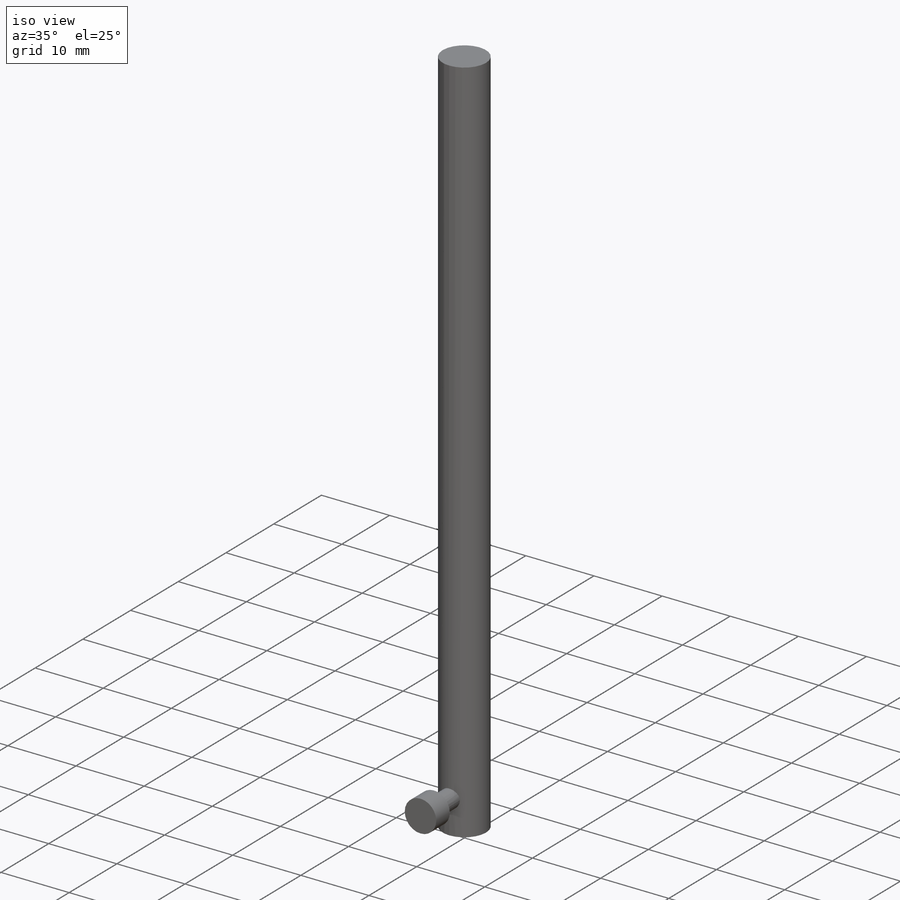
[diagram: iso view]
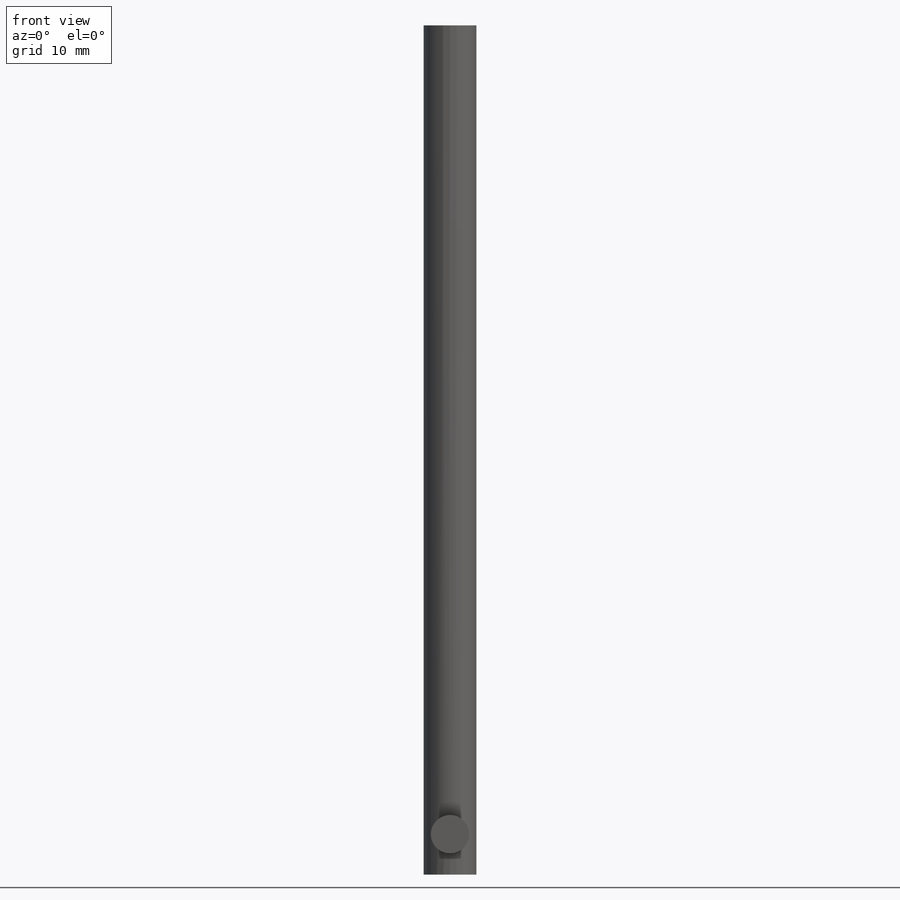
[diagram: front view]
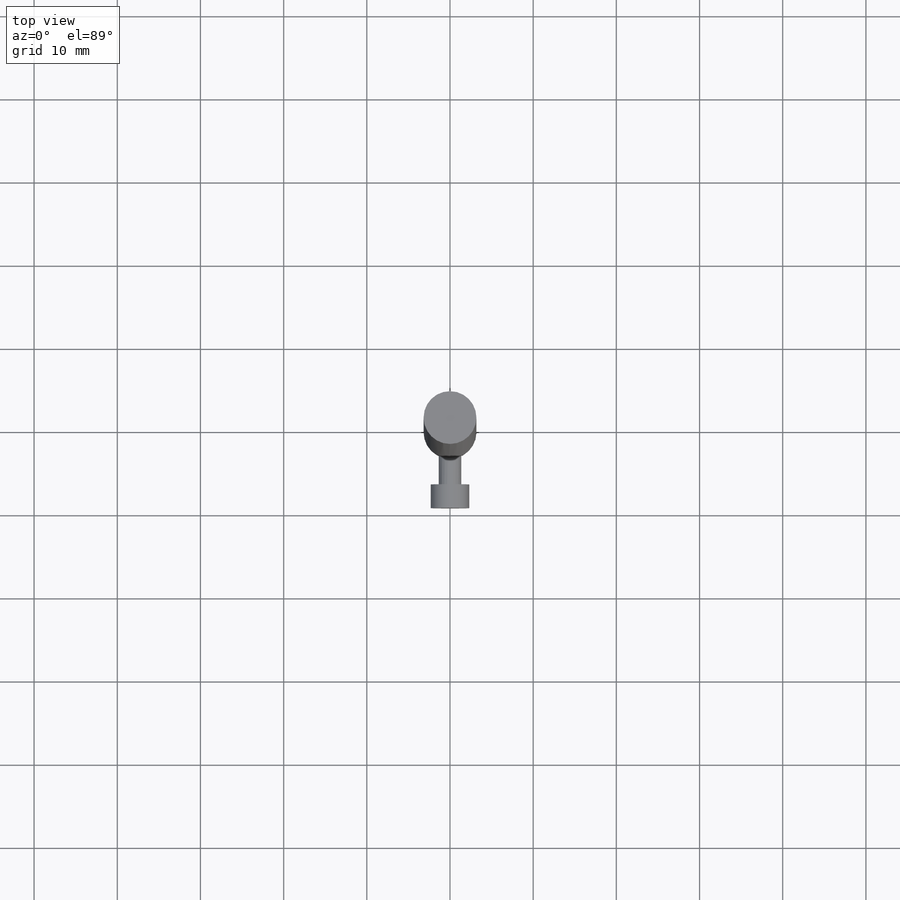
[diagram: top view]
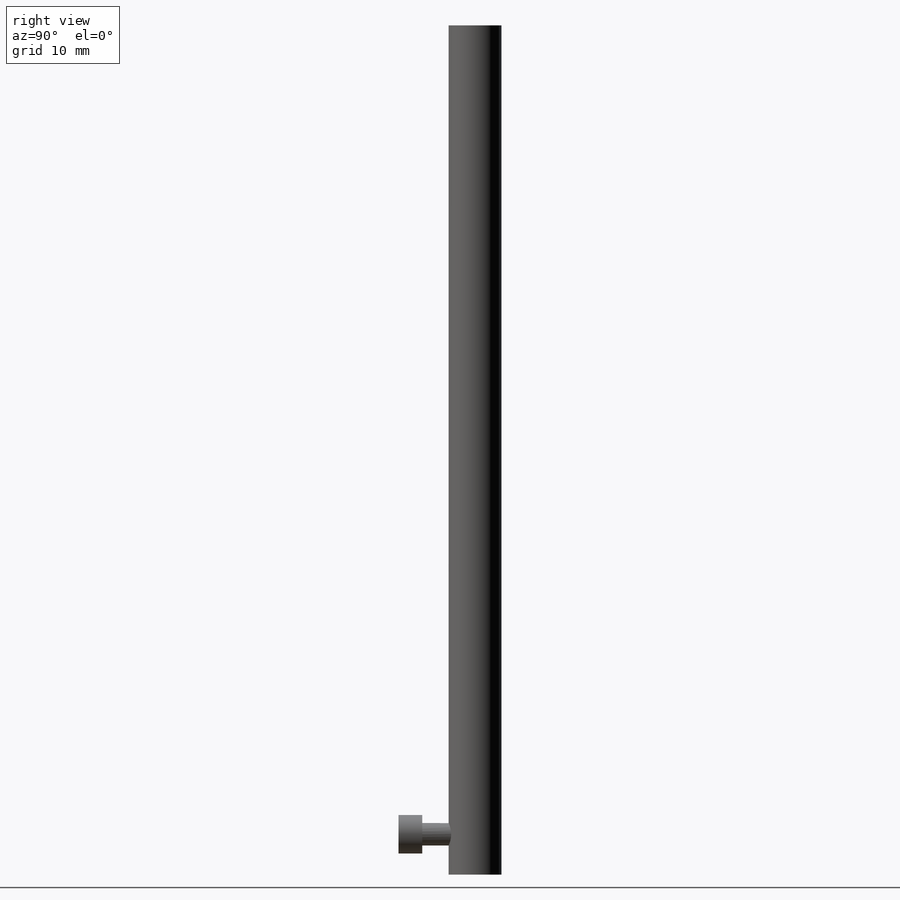
[diagram: right view]
SOLIDWORKS PART (.sldprt)
format: sldprt  version: not decoded by parser v0  size: 150,016 bytes
history: native  units: mm
features: sketch x4, extrude x3, material x1, cut_extrude x1 (+16 scaffold rows collapsed)
feature tree (25):
  scaffold x16  (default folders/planes/origin — collapsed)
  material  "Material <not specified>"
  sketch  "Sketch1"  dims[D1=6.35mm]
  extrude  "Extrude1"  Depth=102.108mm
  sketch  "Sketch2"  dims[D1=2.0mm]
  cut_extrude  "Extrude2"  Depth=6.35mm
  sketch  "Sketch4"  dims[D2=~2.70764mm D1=3.5mm]
  extrude  "Boss-Extrude2"  Depth=6.35mm
  sketch  "Sketch5"  dims[D1=4.6228mm]
  extrude  "Boss-Extrude3"  Depth=2.8448mm
decode coverage: 8 of 8 modeling features carry decoded parameters
note: ~ marks probable driven/reference dimensions
note: suppression state not decoded; provenance and decode notes live in map.json
